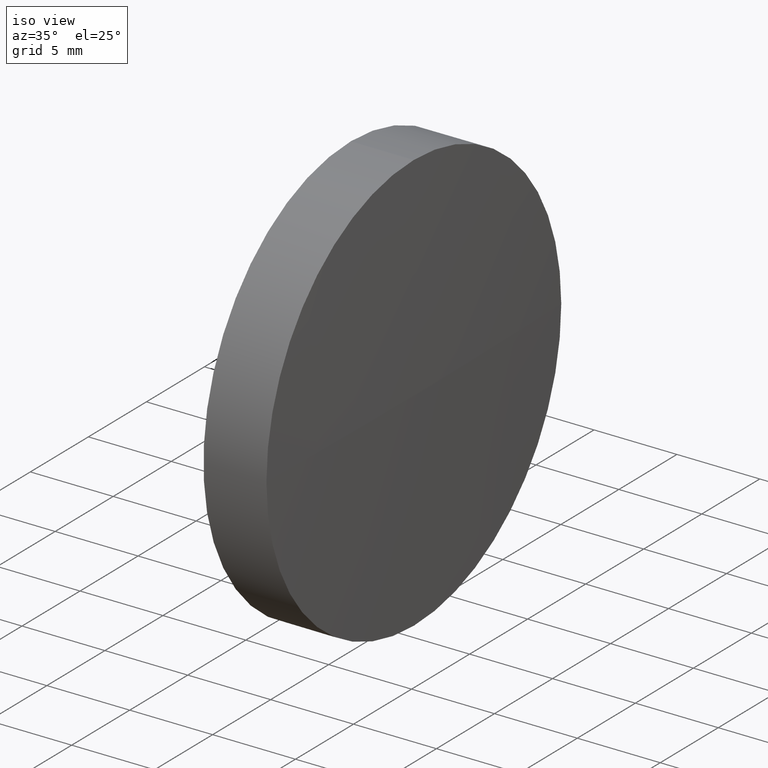
[diagram: clean part render]
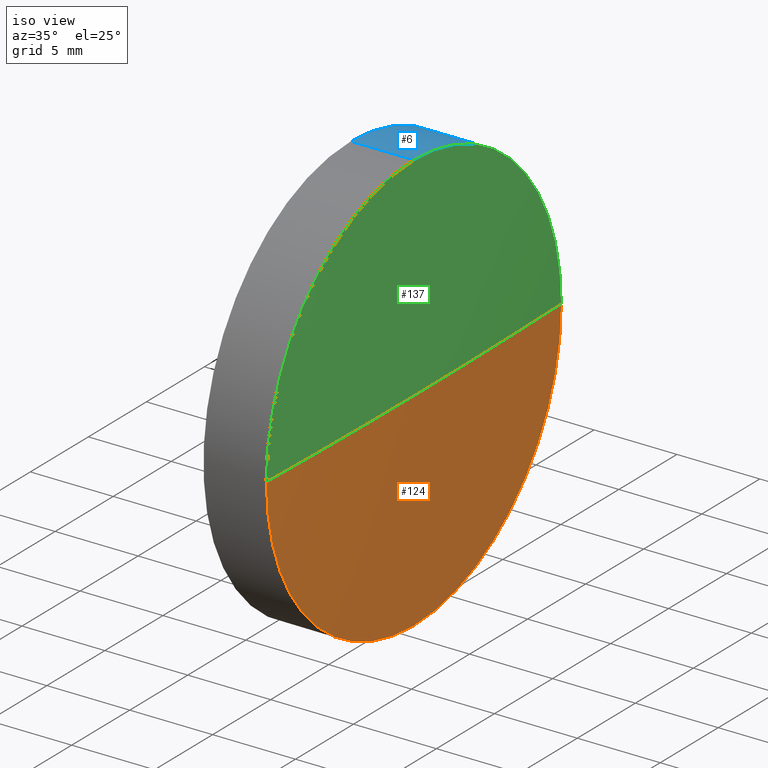
[diagram: same view with three faces highlighted in distinct colors, each labeled with its STEP entity id]
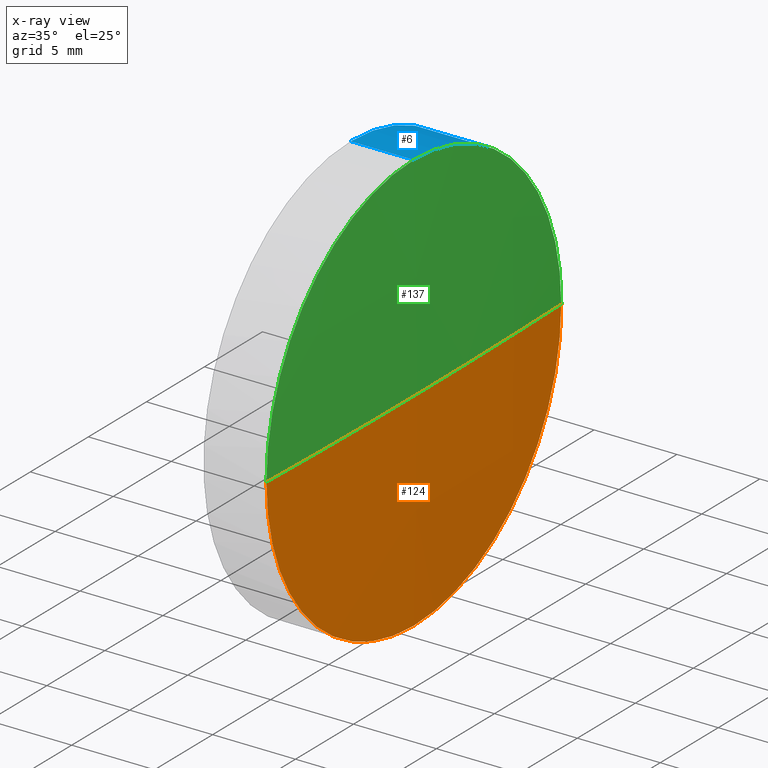
[diagram: x-ray of the same camera — body ghosted, the three highlighted faces saturated]
A machine part, iso view with three faces highlighted in distinct colors.
The next image is the same camera in x-ray (body ghosted, the three faces saturated) — at least one of them is partly hidden behind the body in this view.
Their STEP definitions:

[orange] entity #124 — the highlighted spherical surface has radius 403.325 mm.
#2 = EDGE_LOOP ( 'NONE', ( #104, #62, #170, #96 ) ) ;
#10 = EDGE_CURVE ( 'NONE', #132, #100, #103, .T. ) ;
#14 = DIRECTION ( 'NONE',  ( -1.000000000000000000, 0.0000000000000000000, 0.0000000000000000000 ) ) ;
#21 = SPHERICAL_SURFACE ( 'NONE', #73, 403.3249999999942500 ) ;
#24 = EDGE_CURVE ( 'NONE', #162, #92, #123, .T. ) ;
#29 = CARTESIAN_POINT ( 'NONE',  ( 491.5125078025071200, 125.1785277586624500, 0.0000000000000000000 ) ) ;
#32 = DIRECTION ( 'NONE',  ( 0.0000000000000000000, -1.224646799147353200E-016, 1.000000000000000000 ) ) ;
#33 = CARTESIAN_POINT ( 'NONE',  ( 491.7125078025071000, 125.1785277586635900, 0.0000000000000000000 ) ) ;
#36 = EDGE_CURVE ( 'NONE', #100, #92, #186, .T. ) ;
#45 = DIRECTION ( 'NONE',  ( -1.000000000000000000, -0.0000000000000000000, -0.0000000000000000000 ) ) ;
#47 = DIRECTION ( 'NONE',  ( 0.0000000000000000000, 0.0000000000000000000, 1.000000000000000000 ) ) ;
#52 = CIRCLE ( 'NONE', #55, 403.3249999999942500 ) ;
#55 = AXIS2_PLACEMENT_3D ( 'NONE', #113, #32, #175 ) ;
#62 = ORIENTED_EDGE ( 'NONE', *, *, #24, .T. ) ;
#64 = CARTESIAN_POINT ( 'NONE',  ( 491.5125078025071200, 125.1785277586624500, 0.0000000000000000000 ) ) ;
#65 = CARTESIAN_POINT ( 'NONE',  ( 491.5125078025071200, 137.8785277586626700, 1.555301434917022300E-015 ) ) ;
#73 = AXIS2_PLACEMENT_3D ( 'NONE', #152, #129, #167 ) ;
#82 = AXIS2_PLACEMENT_3D ( 'NONE', #105, #94, #14 ) ;
#85 = FACE_OUTER_BOUND ( 'NONE', #2, .T. ) ;
#89 = AXIS2_PLACEMENT_3D ( 'NONE', #29, #45, #125 ) ;
#92 = VERTEX_POINT ( 'NONE', #128 ) ;
#94 = DIRECTION ( 'NONE',  ( 0.0000000000000000000, 0.0000000000000000000, -1.000000000000000000 ) ) ;
#96 = ORIENTED_EDGE ( 'NONE', *, *, #10, .F. ) ;
#98 = EDGE_CURVE ( 'NONE', #162, #132, #52, .T. ) ;
#100 = VERTEX_POINT ( 'NONE', #179 ) ;
#103 = CIRCLE ( 'NONE', #138, 12.70000000000001700 ) ;
#104 = ORIENTED_EDGE ( 'NONE', *, *, #98, .F. ) ;
#105 = CARTESIAN_POINT ( 'NONE',  ( 88.38750780251280000, 125.1785277586636200, 0.0000000000000000000 ) ) ;
#113 = CARTESIAN_POINT ( 'NONE',  ( 88.38750780251280000, 125.1785277586636200, 0.0000000000000000000 ) ) ;
#123 = CIRCLE ( 'NONE', #82, 403.3249999999942500 ) ;
#124 = ADVANCED_FACE ( 'NONE', ( #85 ), #21, .T. ) ;
#125 = DIRECTION ( 'NONE',  ( 0.0000000000000000000, 0.0000000000000000000, 1.000000000000000000 ) ) ;
#128 = CARTESIAN_POINT ( 'NONE',  ( 491.5125078025071200, 112.4785277586634000, 0.0000000000000000000 ) ) ;
#129 = DIRECTION ( 'NONE',  ( 0.0000000000000000000, 0.0000000000000000000, 1.000000000000000000 ) ) ;
#132 = VERTEX_POINT ( 'NONE', #65 ) ;
#138 = AXIS2_PLACEMENT_3D ( 'NONE', #64, #163, #47 ) ;
#152 = CARTESIAN_POINT ( 'NONE',  ( 88.38750780251280000, 125.1785277586636200, 0.0000000000000000000 ) ) ;
#162 = VERTEX_POINT ( 'NONE', #33 ) ;
#163 = DIRECTION ( 'NONE',  ( -1.000000000000000000, -0.0000000000000000000, -0.0000000000000000000 ) ) ;
#167 = DIRECTION ( 'NONE',  ( 0.0000000000000000000, -1.000000000000000000, 0.0000000000000000000 ) ) ;
#170 = ORIENTED_EDGE ( 'NONE', *, *, #36, .F. ) ;
#175 = DIRECTION ( 'NONE',  ( 0.0000000000000000000, -1.000000000000000000, -1.224646799147353200E-016 ) ) ;
#179 = CARTESIAN_POINT ( 'NONE',  ( 491.5125078025071200, 125.1785277586624500, -12.70000000000001700 ) ) ;
#186 = CIRCLE ( 'NONE', #89, 12.70000000000001700 ) ;

[blue] entity #6 — the highlighted cylindrical surface (partial cylindrical patch) has radius 12.7 mm, axis along (-1, -0, -0).
#3 = VECTOR ( 'NONE', #93, 1000.000000000000000 ) ;
#5 = AXIS2_PLACEMENT_3D ( 'NONE', #81, #8, #27 ) ;
#6 = ADVANCED_FACE ( 'NONE', ( #53 ), #15, .T. ) ;
#8 = DIRECTION ( 'NONE',  ( -1.000000000000000000, -0.0000000000000000000, -0.0000000000000000000 ) ) ;
#10 = EDGE_CURVE ( 'NONE', #132, #100, #103, .T. ) ;
#11 = VECTOR ( 'NONE', #155, 1000.000000000000000 ) ;
#12 = ORIENTED_EDGE ( 'NONE', *, *, #139, .F. ) ;
#15 = CYLINDRICAL_SURFACE ( 'NONE', #134, 12.70000000000001700 ) ;
#18 = ORIENTED_EDGE ( 'NONE', *, *, #10, .T. ) ;
#19 = VERTEX_POINT ( 'NONE', #74 ) ;
#27 = DIRECTION ( 'NONE',  ( 0.0000000000000000000, 0.0000000000000000000, 1.000000000000000000 ) ) ;
#28 = CARTESIAN_POINT ( 'NONE',  ( 487.7125078025071600, 125.1785277586624500, 12.70000000000001700 ) ) ;
#40 = EDGE_LOOP ( 'NONE', ( #18, #171, #12, #164, #149 ) ) ;
#41 = DIRECTION ( 'NONE',  ( -1.000000000000000000, -0.0000000000000000000, -0.0000000000000000000 ) ) ;
#44 = EDGE_CURVE ( 'NONE', #19, #132, #54, .T. ) ;
#46 = LINE ( 'NONE', #144, #11 ) ;
#47 = DIRECTION ( 'NONE',  ( 0.0000000000000000000, 0.0000000000000000000, 1.000000000000000000 ) ) ;
#48 = CARTESIAN_POINT ( 'NONE',  ( 482.0826117513499900, 125.1785277586624500, -12.70000000000001700 ) ) ;
#53 = FACE_OUTER_BOUND ( 'NONE', #40, .T. ) ;
#54 = CIRCLE ( 'NONE', #108, 12.70000000000001700 ) ;
#64 = CARTESIAN_POINT ( 'NONE',  ( 491.5125078025071200, 125.1785277586624500, 0.0000000000000000000 ) ) ;
#65 = CARTESIAN_POINT ( 'NONE',  ( 491.5125078025071200, 137.8785277586626700, 1.555301434917022300E-015 ) ) ;
#74 = CARTESIAN_POINT ( 'NONE',  ( 491.5125078025071200, 125.1785277586624500, 12.70000000000001700 ) ) ;
#75 = DIRECTION ( 'NONE',  ( 0.0000000000000000000, 0.0000000000000000000, 1.000000000000000000 ) ) ;
#77 = CARTESIAN_POINT ( 'NONE',  ( 491.5125078025071200, 125.1785277586624500, 0.0000000000000000000 ) ) ;
#81 = CARTESIAN_POINT ( 'NONE',  ( 487.7125078025071600, 125.1785277586624500, 0.0000000000000000000 ) ) ;
#93 = DIRECTION ( 'NONE',  ( -1.000000000000000000, -0.0000000000000000000, -0.0000000000000000000 ) ) ;
#100 = VERTEX_POINT ( 'NONE', #179 ) ;
#103 = CIRCLE ( 'NONE', #138, 12.70000000000001700 ) ;
#108 = AXIS2_PLACEMENT_3D ( 'NONE', #77, #172, #126 ) ;
#111 = EDGE_CURVE ( 'NONE', #100, #146, #185, .T. ) ;
#118 = CARTESIAN_POINT ( 'NONE',  ( 487.7125078025071600, 125.1785277586624500, -12.70000000000001700 ) ) ;
#121 = CIRCLE ( 'NONE', #5, 12.70000000000001700 ) ;
#126 = DIRECTION ( 'NONE',  ( 0.0000000000000000000, 0.0000000000000000000, 1.000000000000000000 ) ) ;
#132 = VERTEX_POINT ( 'NONE', #65 ) ;
#134 = AXIS2_PLACEMENT_3D ( 'NONE', #150, #41, #75 ) ;
#138 = AXIS2_PLACEMENT_3D ( 'NONE', #64, #163, #47 ) ;
#139 = EDGE_CURVE ( 'NONE', #145, #146, #121, .T. ) ;
#144 = CARTESIAN_POINT ( 'NONE',  ( 482.0826117513499900, 125.1785277586624500, 12.70000000000001700 ) ) ;
#145 = VERTEX_POINT ( 'NONE', #28 ) ;
#146 = VERTEX_POINT ( 'NONE', #118 ) ;
#148 = EDGE_CURVE ( 'NONE', #19, #145, #46, .T. ) ;
#149 = ORIENTED_EDGE ( 'NONE', *, *, #44, .T. ) ;
#150 = CARTESIAN_POINT ( 'NONE',  ( 482.0826117513499900, 125.1785277586624500, 0.0000000000000000000 ) ) ;
#155 = DIRECTION ( 'NONE',  ( -1.000000000000000000, -0.0000000000000000000, -0.0000000000000000000 ) ) ;
#163 = DIRECTION ( 'NONE',  ( -1.000000000000000000, -0.0000000000000000000, -0.0000000000000000000 ) ) ;
#164 = ORIENTED_EDGE ( 'NONE', *, *, #148, .F. ) ;
#171 = ORIENTED_EDGE ( 'NONE', *, *, #111, .T. ) ;
#172 = DIRECTION ( 'NONE',  ( -1.000000000000000000, -0.0000000000000000000, -0.0000000000000000000 ) ) ;
#179 = CARTESIAN_POINT ( 'NONE',  ( 491.5125078025071200, 125.1785277586624500, -12.70000000000001700 ) ) ;
#185 = LINE ( 'NONE', #48, #3 ) ;

[green] entity #137 — the highlighted spherical surface has radius 403.325 mm.
#14 = DIRECTION ( 'NONE',  ( -1.000000000000000000, 0.0000000000000000000, 0.0000000000000000000 ) ) ;
#19 = VERTEX_POINT ( 'NONE', #74 ) ;
#23 = AXIS2_PLACEMENT_3D ( 'NONE', #165, #79, #142 ) ;
#24 = EDGE_CURVE ( 'NONE', #162, #92, #123, .T. ) ;
#25 = ORIENTED_EDGE ( 'NONE', *, *, #24, .F. ) ;
#32 = DIRECTION ( 'NONE',  ( 0.0000000000000000000, -1.224646799147353200E-016, 1.000000000000000000 ) ) ;
#33 = CARTESIAN_POINT ( 'NONE',  ( 491.7125078025071000, 125.1785277586635900, 0.0000000000000000000 ) ) ;
#44 = EDGE_CURVE ( 'NONE', #19, #132, #54, .T. ) ;
#50 = CARTESIAN_POINT ( 'NONE',  ( 491.5125078025071200, 125.1785277586624500, 0.0000000000000000000 ) ) ;
#52 = CIRCLE ( 'NONE', #55, 403.3249999999942500 ) ;
#54 = CIRCLE ( 'NONE', #108, 12.70000000000001700 ) ;
#55 = AXIS2_PLACEMENT_3D ( 'NONE', #113, #32, #175 ) ;
#65 = CARTESIAN_POINT ( 'NONE',  ( 491.5125078025071200, 137.8785277586626700, 1.555301434917022300E-015 ) ) ;
#74 = CARTESIAN_POINT ( 'NONE',  ( 491.5125078025071200, 125.1785277586624500, 12.70000000000001700 ) ) ;
#77 = CARTESIAN_POINT ( 'NONE',  ( 491.5125078025071200, 125.1785277586624500, 0.0000000000000000000 ) ) ;
#79 = DIRECTION ( 'NONE',  ( 0.0000000000000000000, 0.0000000000000000000, 1.000000000000000000 ) ) ;
#82 = AXIS2_PLACEMENT_3D ( 'NONE', #105, #94, #14 ) ;
#83 = DIRECTION ( 'NONE',  ( 0.0000000000000000000, 0.0000000000000000000, 1.000000000000000000 ) ) ;
#87 = SPHERICAL_SURFACE ( 'NONE', #23, 403.3249999999942500 ) ;
#92 = VERTEX_POINT ( 'NONE', #128 ) ;
#94 = DIRECTION ( 'NONE',  ( 0.0000000000000000000, 0.0000000000000000000, -1.000000000000000000 ) ) ;
#98 = EDGE_CURVE ( 'NONE', #162, #132, #52, .T. ) ;
#102 = EDGE_LOOP ( 'NONE', ( #25, #112, #158, #122 ) ) ;
#105 = CARTESIAN_POINT ( 'NONE',  ( 88.38750780251280000, 125.1785277586636200, 0.0000000000000000000 ) ) ;
#108 = AXIS2_PLACEMENT_3D ( 'NONE', #77, #172, #126 ) ;
#112 = ORIENTED_EDGE ( 'NONE', *, *, #98, .T. ) ;
#113 = CARTESIAN_POINT ( 'NONE',  ( 88.38750780251280000, 125.1785277586636200, 0.0000000000000000000 ) ) ;
#122 = ORIENTED_EDGE ( 'NONE', *, *, #140, .F. ) ;
#123 = CIRCLE ( 'NONE', #82, 403.3249999999942500 ) ;
#126 = DIRECTION ( 'NONE',  ( 0.0000000000000000000, 0.0000000000000000000, 1.000000000000000000 ) ) ;
#128 = CARTESIAN_POINT ( 'NONE',  ( 491.5125078025071200, 112.4785277586634000, 0.0000000000000000000 ) ) ;
#132 = VERTEX_POINT ( 'NONE', #65 ) ;
#137 = ADVANCED_FACE ( 'NONE', ( #157 ), #87, .T. ) ;
#140 = EDGE_CURVE ( 'NONE', #92, #19, #153, .T. ) ;
#142 = DIRECTION ( 'NONE',  ( 0.0000000000000000000, -1.000000000000000000, 0.0000000000000000000 ) ) ;
#147 = AXIS2_PLACEMENT_3D ( 'NONE', #50, #180, #83 ) ;
#153 = CIRCLE ( 'NONE', #147, 12.70000000000001700 ) ;
#157 = FACE_OUTER_BOUND ( 'NONE', #102, .T. ) ;
#158 = ORIENTED_EDGE ( 'NONE', *, *, #44, .F. ) ;
#162 = VERTEX_POINT ( 'NONE', #33 ) ;
#165 = CARTESIAN_POINT ( 'NONE',  ( 88.38750780251280000, 125.1785277586636200, 0.0000000000000000000 ) ) ;
#172 = DIRECTION ( 'NONE',  ( -1.000000000000000000, -0.0000000000000000000, -0.0000000000000000000 ) ) ;
#175 = DIRECTION ( 'NONE',  ( 0.0000000000000000000, -1.000000000000000000, -1.224646799147353200E-016 ) ) ;
#180 = DIRECTION ( 'NONE',  ( -1.000000000000000000, -0.0000000000000000000, -0.0000000000000000000 ) ) ;